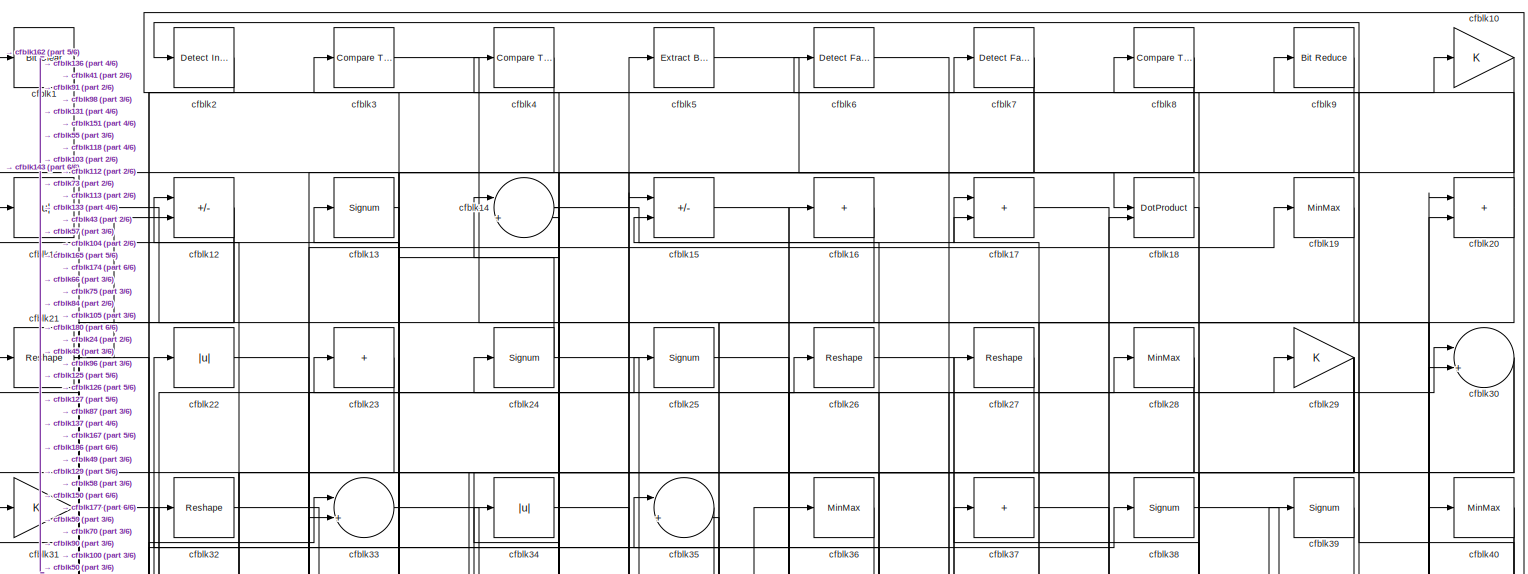
[diagram: root canvas - part 1/6, full width, top band]
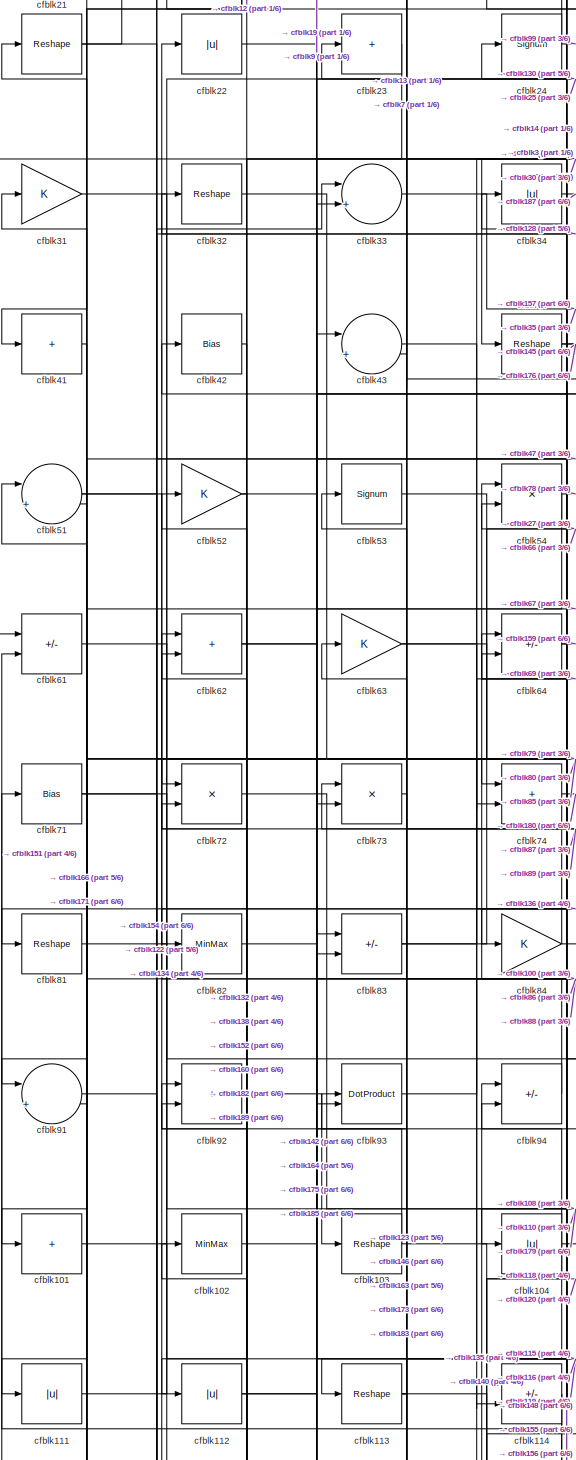
[diagram: root canvas - part 2/6, middle left region]
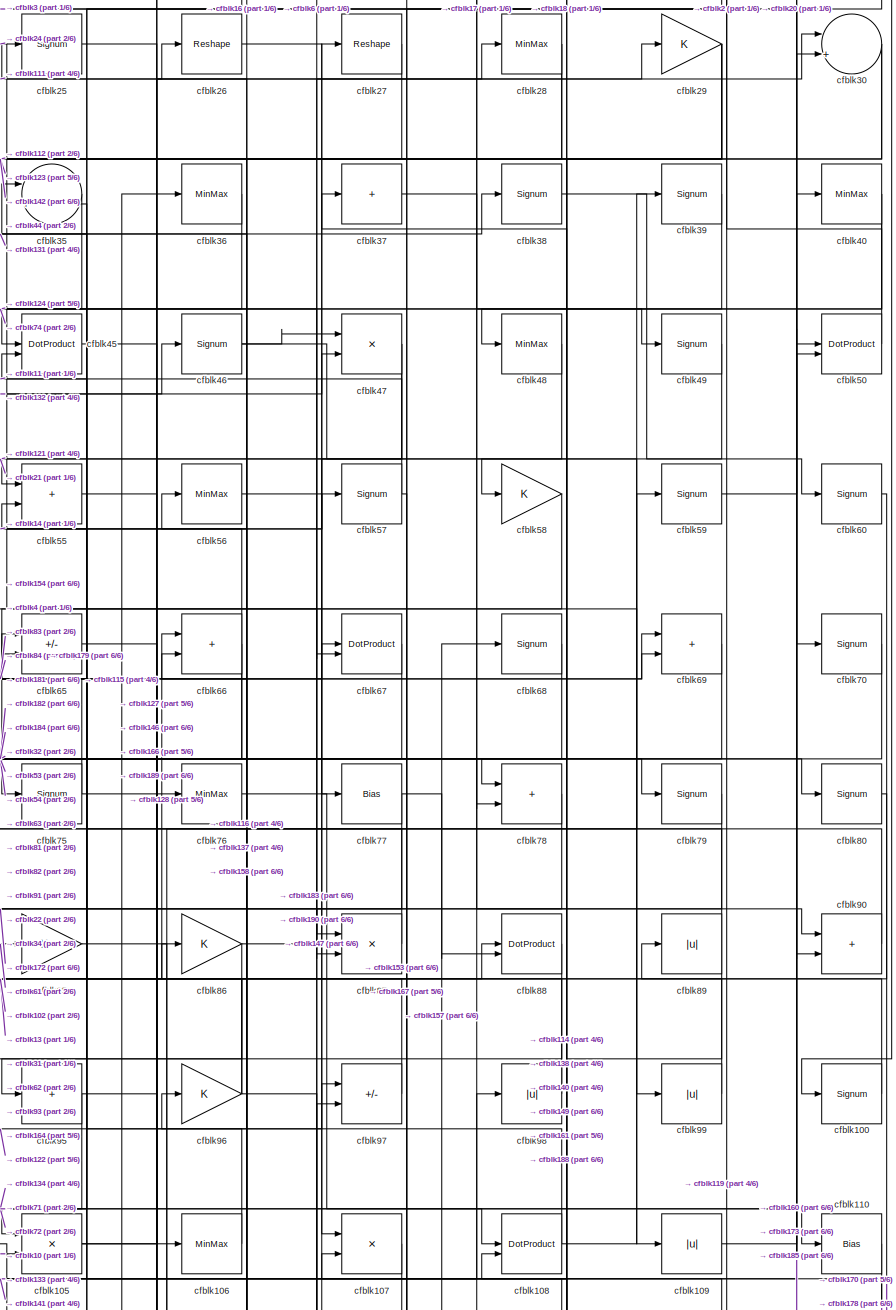
[diagram: root canvas - part 3/6, middle right region]
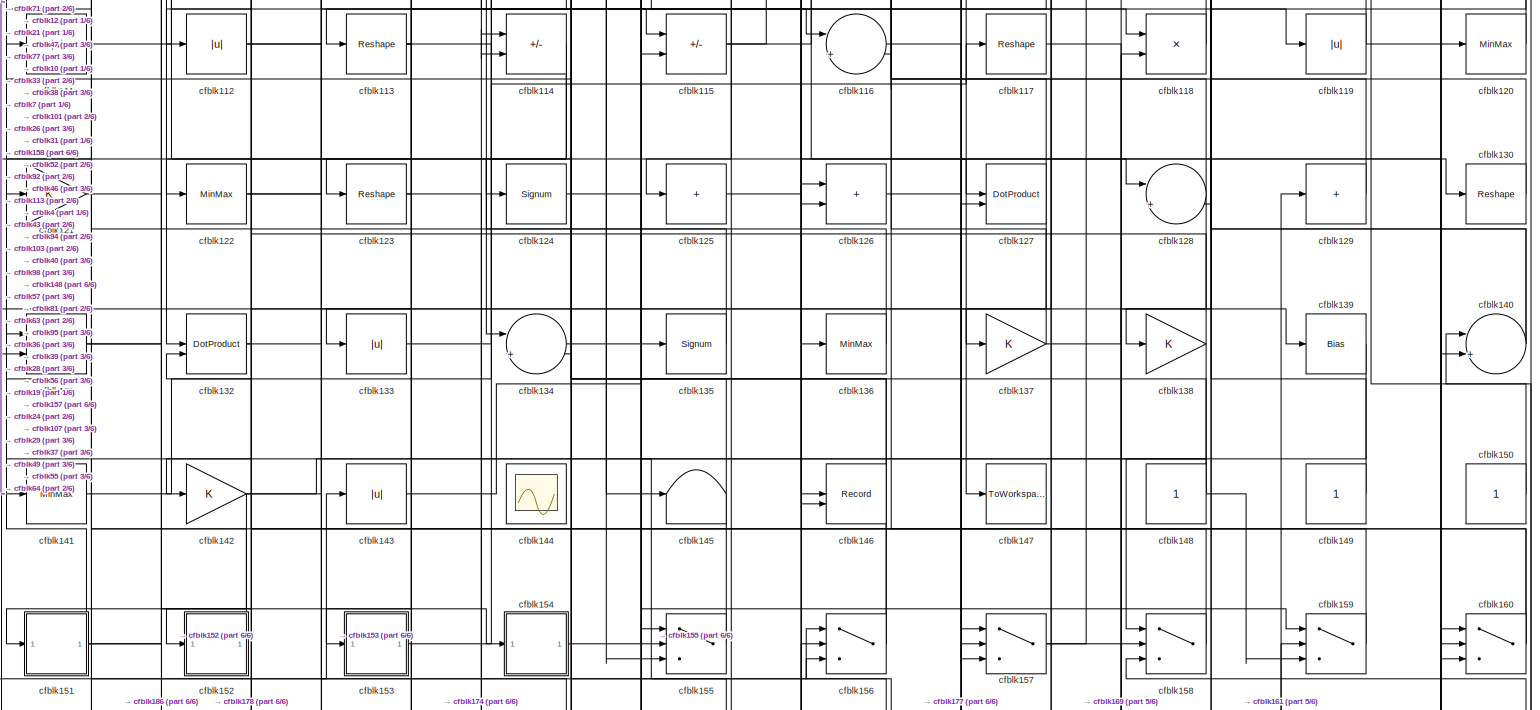
[diagram: root canvas - part 4/6, full width, bottom band]
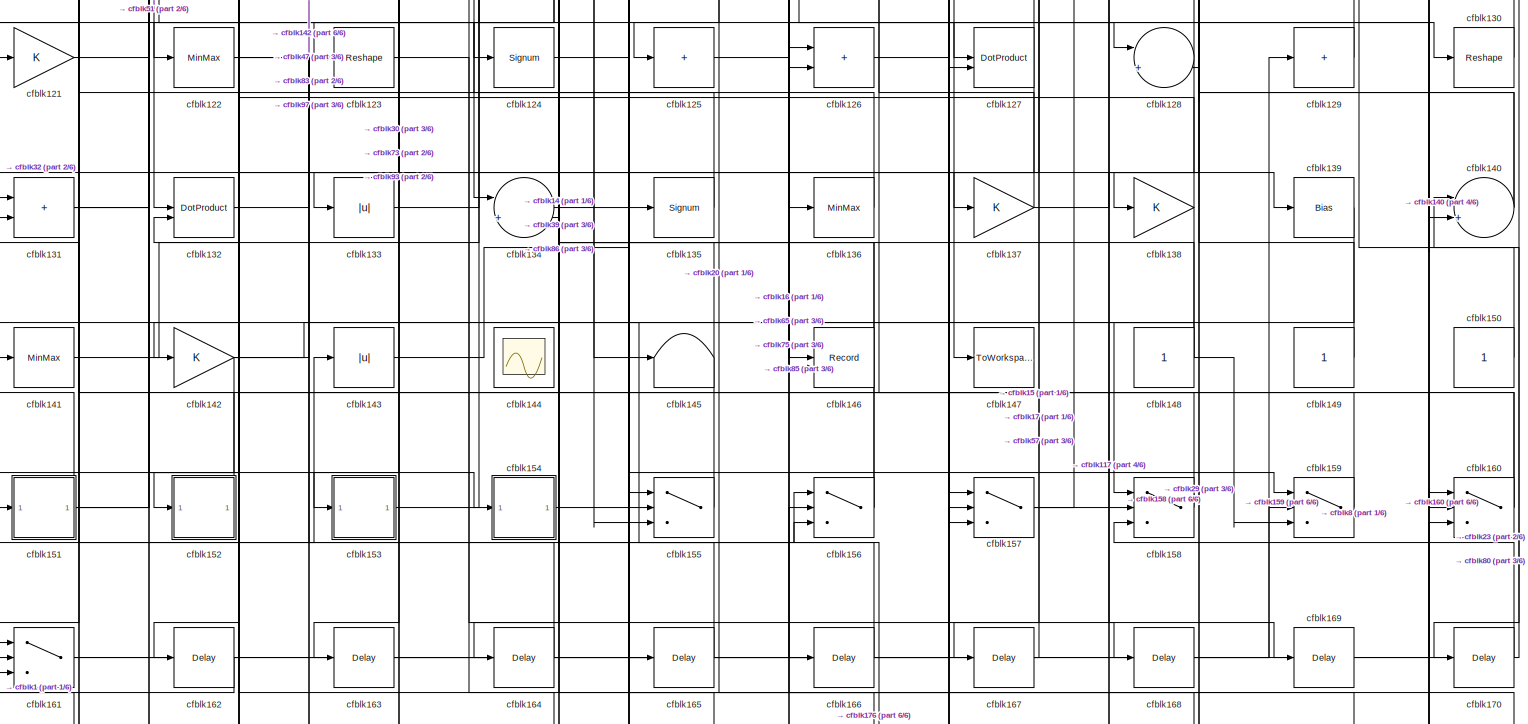
[diagram: root canvas - part 5/6, full width, bottom band]
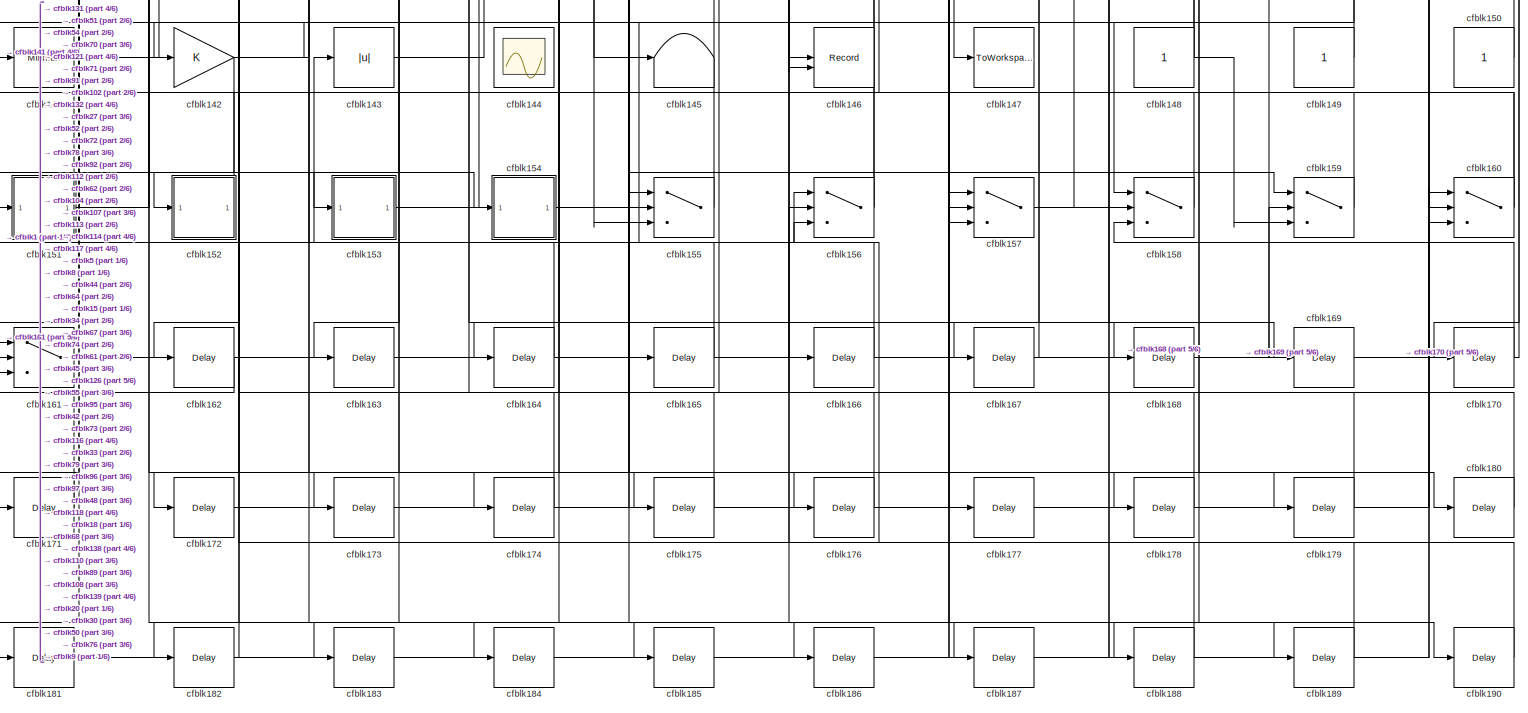
[diagram: root canvas - part 6/6, full width, bottom band]
MODEL slx_f666d6c73bb5
KIND model
CONFIG AbsTol = auto
CONFIG EnableMultiTasking = off
CONFIG FixedStep = auto
CONFIG MaxStep = auto
CONFIG MinStep = auto
CONFIG RelTol = 1e-3
CONFIG SampleTimeConstraint = Unconstrained
CONFIG SolverName = VariableStepAuto
CONFIG StartTime = 0.0
CONFIG StopTime = 10.0
BLOCK [Reference] cfblk1  REF=simulink/Logic and Bit
Operations/Bit Clear
  LibrarySourceBlock = hdlsllib/Logic and Bit\nOperations/Bit Clear
  SourceBlock = simulink/Logic and Bit\nOperations/Bit Clear
  SourceType = Bit Clear
BLOCK [Gain] cfblk10
BLOCK [Signum] cfblk100
BLOCK [Sum] cfblk101
  IconShape = rectangular
  Inputs = +
BLOCK [MinMax] cfblk102
BLOCK [Reshape] cfblk103
BLOCK [Abs] cfblk104
  SaturateOnIntegerOverflow = off
BLOCK [Product] cfblk105
  Inputs = */
  RndMeth = Zero
  SaturateOnIntegerOverflow = on
BLOCK [MinMax] cfblk106
BLOCK [Product] cfblk107
  Inputs = */
  RndMeth = Zero
  SaturateOnIntegerOverflow = on
BLOCK [DotProduct] cfblk108
  OutDataTypeStr = Inherit: Inherit via internal rule
BLOCK [Abs] cfblk109
  SaturateOnIntegerOverflow = off
BLOCK [Abs] cfblk11
  SaturateOnIntegerOverflow = off
BLOCK [Bias] cfblk110
  Bias = 0.0
  SaturateOnIntegerOverflow = off
BLOCK [Abs] cfblk111
  SaturateOnIntegerOverflow = off
BLOCK [Abs] cfblk112
  SaturateOnIntegerOverflow = off
BLOCK [Reshape] cfblk113
BLOCK [Sum] cfblk114
  IconShape = rectangular
  Inputs = +-
BLOCK [Sum] cfblk115
  IconShape = rectangular
  Inputs = +-
BLOCK [Sum] cfblk116
  Inputs = |++
BLOCK [Reshape] cfblk117
BLOCK [Product] cfblk118
  Inputs = */
  RndMeth = Zero
  SaturateOnIntegerOverflow = on
BLOCK [Abs] cfblk119
  SaturateOnIntegerOverflow = off
BLOCK [Sum] cfblk12
  IconShape = rectangular
  Inputs = +-
BLOCK [MinMax] cfblk120
BLOCK [Gain] cfblk121
BLOCK [MinMax] cfblk122
BLOCK [Reshape] cfblk123
BLOCK [Signum] cfblk124
BLOCK [Sum] cfblk125
  IconShape = rectangular
  Inputs = +
BLOCK [Sum] cfblk126
  IconShape = rectangular
BLOCK [DotProduct] cfblk127
  OutDataTypeStr = Inherit: Inherit via internal rule
BLOCK [Sum] cfblk128
  Inputs = |++
BLOCK [Sum] cfblk129
  IconShape = rectangular
  Inputs = +
BLOCK [Signum] cfblk13
BLOCK [Reshape] cfblk130
BLOCK [Sum] cfblk131
  IconShape = rectangular
BLOCK [DotProduct] cfblk132
  OutDataTypeStr = Inherit: Inherit via internal rule
BLOCK [Abs] cfblk133
  SaturateOnIntegerOverflow = off
BLOCK [Sum] cfblk134
  Inputs = |++
BLOCK [Signum] cfblk135
BLOCK [MinMax] cfblk136
BLOCK [Gain] cfblk137
BLOCK [Gain] cfblk138
BLOCK [Bias] cfblk139
  Bias = 0.0
  SaturateOnIntegerOverflow = off
BLOCK [Sum] cfblk14
  Inputs = |++
BLOCK [Sum] cfblk140
  Inputs = |++
BLOCK [MinMax] cfblk141
BLOCK [Gain] cfblk142
BLOCK [Abs] cfblk143
  SaturateOnIntegerOverflow = off
BLOCK [Scope] cfblk144
  Floating = on
  NumInputPorts = 1
  ScopeSpecificationString = Simulink.scopes.TimeScopeBlockCfg('CurrentConfiguration', extmgr.ConfigurationSet(extmgr.Configuration('Core','General UI',true,'FigureColor',[0.156862745098039 0.156862745098039 0.156862745098039]),extmgr.Configuration('Core','Source UI',true),extmgr.Configuration('Sources','WiredSimulink',true,'DataLoggingVariableName','ScopeData1','DataLoggingSaveFormat','StructureWithTime','DataLoggingLimitDat...<+2713ch>
BLOCK [Terminator] cfblk145
BLOCK [Record] cfblk146
  CompatibilityTag = XY
  FileSettingsInternal = {"entries":[{"content":{"excelSettings":{"content":{},"type":"Streamout.ExcelSettings"}},"type":"Streamout.FileSettingStorage","uuid":""}],"packageUris":["http:\/\/schema.mathworks.com\/mf0\/streamout_blocks\/R2020a"],"version":"1.0"}
  Layout = [1 1]
  SignalsInternal = {"entries":[{"content":{"signals":[{"content":{"blockPath":[],"dimensions":[1],"domain":"","lineColor":"#a2142f","plots":[1],"port":1,"signalID":2359,"signalName":"XY Graph:1"},"type":"RecordBlkView.Signal","uuid":""},{"content":{"blockPath":[],"dimensions":[1],"domain":"","lineColor":"#139fff","plots":[1],"port":2,"signalID":2362,"signalName":"XY Graph:2"},"type":"RecordBlkView.Signal","uuid":""}...<+146ch>
  VisualizationBindings = {"xyplotplugin":{"info":[{"series":[{"bindingParametersList":[{"parameter":"X-Axis","signalID":2359,"signalName":"XY Graph:1"},{"parameter":"Y-Axis","signalID":2362,"signalName":"XY Graph:2"}],"seriesID":11529}],"subplotID":1}]}}
  st = -1
BLOCK [ToWorkspace] cfblk147
  MaxDataPoints = inf
  SampleTime = -1
  SaveFormat = Timeseries
  VariableName = simout
BLOCK [Constant] cfblk148
  SampleTime = -1
BLOCK [Constant] cfblk149
  SampleTime = -1
BLOCK [Sum] cfblk15
  IconShape = rectangular
  Inputs = +-
BLOCK [Constant] cfblk150
  SampleTime = -1
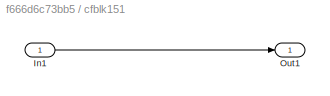
BLOCK [SubSystem] cfblk151
  LibrarySourceBlock = hdlsllib/Ports &\nSubsystems/Subsystem
BLOCK [Inport] cfblk151/In1
BLOCK [Outport] cfblk151/Out1
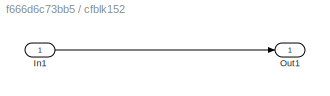
BLOCK [SubSystem] cfblk152
  LibrarySourceBlock = hdlsllib/Ports &\nSubsystems/Subsystem
BLOCK [Inport] cfblk152/In1
BLOCK [Outport] cfblk152/Out1
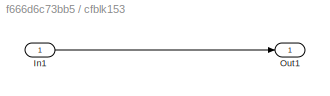
BLOCK [SubSystem] cfblk153
  LibrarySourceBlock = hdlsllib/Ports &\nSubsystems/Subsystem
BLOCK [Inport] cfblk153/In1
BLOCK [Outport] cfblk153/Out1
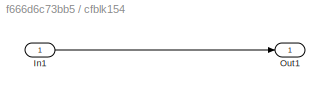
BLOCK [SubSystem] cfblk154
  LibrarySourceBlock = hdlsllib/Ports &\nSubsystems/Subsystem
BLOCK [Inport] cfblk154/In1
BLOCK [Outport] cfblk154/Out1
BLOCK [Switch] cfblk155
  InputSameDT = off
  SaturateOnIntegerOverflow = off
BLOCK [Switch] cfblk156
  InputSameDT = off
  SaturateOnIntegerOverflow = off
BLOCK [Switch] cfblk157
  InputSameDT = off
  SaturateOnIntegerOverflow = off
BLOCK [Switch] cfblk158
  InputSameDT = off
  SaturateOnIntegerOverflow = off
BLOCK [Switch] cfblk159
  InputSameDT = off
  SaturateOnIntegerOverflow = off
BLOCK [Sum] cfblk16
  IconShape = rectangular
  Inputs = +
BLOCK [Switch] cfblk160
  InputSameDT = off
  SaturateOnIntegerOverflow = off
BLOCK [Switch] cfblk161
  InputSameDT = off
  SaturateOnIntegerOverflow = off
BLOCK [Delay] cfblk162
  InputPortMap = u0
  SampleTime = 1
BLOCK [Delay] cfblk163
  InputPortMap = u0
  SampleTime = 1
BLOCK [Delay] cfblk164
  InputPortMap = u0
  SampleTime = 1
BLOCK [Delay] cfblk165
  InputPortMap = u0
  SampleTime = 1
BLOCK [Delay] cfblk166
  InputPortMap = u0
  SampleTime = 1
BLOCK [Delay] cfblk167
  InputPortMap = u0
  SampleTime = 1
BLOCK [Delay] cfblk168
  InputPortMap = u0
  SampleTime = 1
BLOCK [Delay] cfblk169
  InputPortMap = u0
  SampleTime = 1
BLOCK [Sum] cfblk17
  IconShape = rectangular
BLOCK [Delay] cfblk170
  InputPortMap = u0
  SampleTime = 1
BLOCK [Delay] cfblk171
  InputPortMap = u0
  SampleTime = 1
BLOCK [Delay] cfblk172
  InputPortMap = u0
  SampleTime = 1
BLOCK [Delay] cfblk173
  InputPortMap = u0
  SampleTime = 1
BLOCK [Delay] cfblk174
  InputPortMap = u0
  SampleTime = 1
BLOCK [Delay] cfblk175
  InputPortMap = u0
  SampleTime = 1
BLOCK [Delay] cfblk176
  InputPortMap = u0
  SampleTime = 1
BLOCK [Delay] cfblk177
  InputPortMap = u0
  SampleTime = 1
BLOCK [Delay] cfblk178
  InputPortMap = u0
  SampleTime = 1
BLOCK [Delay] cfblk179
  InputPortMap = u0
  SampleTime = 1
BLOCK [DotProduct] cfblk18
  OutDataTypeStr = Inherit: Inherit via internal rule
BLOCK [Delay] cfblk180
  InputPortMap = u0
  SampleTime = 1
BLOCK [Delay] cfblk181
  InputPortMap = u0
  SampleTime = 1
BLOCK [Delay] cfblk182
  InputPortMap = u0
  SampleTime = 1
BLOCK [Delay] cfblk183
  InputPortMap = u0
  SampleTime = 1
BLOCK [Delay] cfblk184
  InputPortMap = u0
  SampleTime = 1
BLOCK [Delay] cfblk185
  InputPortMap = u0
  SampleTime = 1
BLOCK [Delay] cfblk186
  InputPortMap = u0
  SampleTime = 1
BLOCK [Delay] cfblk187
  InputPortMap = u0
  SampleTime = 1
BLOCK [Delay] cfblk188
  InputPortMap = u0
  SampleTime = 1
BLOCK [Delay] cfblk189
  InputPortMap = u0
  SampleTime = 1
BLOCK [MinMax] cfblk19
BLOCK [Delay] cfblk190
  InputPortMap = u0
  SampleTime = 1
BLOCK [Reference] cfblk2  REF=simulink/Logic and Bit
Operations/Detect
Increase
  LibrarySourceBlock = hdlsllib/Logic and Bit\nOperations/Detect\nIncrease
  SourceBlock = simulink/Logic and Bit\nOperations/Detect\nIncrease
  SourceType = Detect Increase
BLOCK [Sum] cfblk20
  IconShape = rectangular
BLOCK [Reshape] cfblk21
BLOCK [Abs] cfblk22
  SaturateOnIntegerOverflow = off
BLOCK [Sum] cfblk23
  IconShape = rectangular
  Inputs = +
BLOCK [Signum] cfblk24
BLOCK [Signum] cfblk25
BLOCK [Reshape] cfblk26
BLOCK [Reshape] cfblk27
BLOCK [MinMax] cfblk28
BLOCK [Gain] cfblk29
BLOCK [Reference] cfblk3  REF=hdlsllib/Logic and Bit
Operations/Compare
To Constant
  SourceBlock = hdlsllib/Logic and Bit\nOperations/Compare\nTo Constant
  SourceType = Compare To Constant
BLOCK [Sum] cfblk30
  Inputs = |++
BLOCK [Gain] cfblk31
BLOCK [Reshape] cfblk32
BLOCK [Sum] cfblk33
  Inputs = |++
BLOCK [Abs] cfblk34
  SaturateOnIntegerOverflow = off
BLOCK [Sum] cfblk35
  Inputs = |++
BLOCK [MinMax] cfblk36
BLOCK [Sum] cfblk37
  IconShape = rectangular
  Inputs = +
BLOCK [Signum] cfblk38
BLOCK [Signum] cfblk39
BLOCK [Reference] cfblk4  REF=hdlsllib/Logic and Bit
Operations/Compare
To Constant
  SourceBlock = hdlsllib/Logic and Bit\nOperations/Compare\nTo Constant
  SourceType = Compare To Constant
BLOCK [MinMax] cfblk40
BLOCK [Sum] cfblk41
  IconShape = rectangular
  Inputs = +
BLOCK [Bias] cfblk42
  Bias = 0.0
  SaturateOnIntegerOverflow = off
BLOCK [Sum] cfblk43
  Inputs = |++
BLOCK [Reshape] cfblk44
BLOCK [DotProduct] cfblk45
  OutDataTypeStr = Inherit: Inherit via internal rule
BLOCK [Signum] cfblk46
BLOCK [Product] cfblk47
  Inputs = */
  RndMeth = Zero
  SaturateOnIntegerOverflow = on
BLOCK [MinMax] cfblk48
BLOCK [Signum] cfblk49
BLOCK [Reference] cfblk5  REF=simulink/Logic and Bit
Operations/Extract Bits
  LibrarySourceBlock = hdlsllib/Logic and Bit\nOperations/Extract Bits
  SourceBlock = simulink/Logic and Bit\nOperations/Extract Bits
  SourceType = Extract Bits
BLOCK [DotProduct] cfblk50
  OutDataTypeStr = Inherit: Inherit via internal rule
BLOCK [Sum] cfblk51
  Inputs = |++
BLOCK [Gain] cfblk52
BLOCK [Signum] cfblk53
BLOCK [Product] cfblk54
  Inputs = */
  RndMeth = Zero
  SaturateOnIntegerOverflow = on
BLOCK [Sum] cfblk55
  IconShape = rectangular
BLOCK [MinMax] cfblk56
BLOCK [Signum] cfblk57
BLOCK [Gain] cfblk58
BLOCK [Signum] cfblk59
BLOCK [Reference] cfblk6  REF=hdlsllib/Logic and Bit
Operations/Detect Fall
Nonpositive
  SourceBlock = hdlsllib/Logic and Bit\nOperations/Detect Fall\nNonpositive
  SourceType = Detect Fall Nonpositive
BLOCK [Signum] cfblk60
BLOCK [Sum] cfblk61
  IconShape = rectangular
  Inputs = +-
BLOCK [Sum] cfblk62
  IconShape = rectangular
BLOCK [Gain] cfblk63
BLOCK [Sum] cfblk64
  IconShape = rectangular
  Inputs = +-
BLOCK [Sum] cfblk65
  IconShape = rectangular
  Inputs = +-
BLOCK [Sum] cfblk66
  IconShape = rectangular
BLOCK [DotProduct] cfblk67
  OutDataTypeStr = Inherit: Inherit via internal rule
BLOCK [Signum] cfblk68
BLOCK [Sum] cfblk69
  IconShape = rectangular
BLOCK [Reference] cfblk7  REF=hdlsllib/Logic and Bit
Operations/Detect Fall
Negative
  SourceBlock = hdlsllib/Logic and Bit\nOperations/Detect Fall\nNegative
  SourceType = Detect Fall Negative
BLOCK [Signum] cfblk70
BLOCK [Bias] cfblk71
  Bias = 0.0
  SaturateOnIntegerOverflow = off
BLOCK [Product] cfblk72
  Inputs = */
  RndMeth = Zero
  SaturateOnIntegerOverflow = on
BLOCK [Product] cfblk73
  Inputs = */
  RndMeth = Zero
  SaturateOnIntegerOverflow = on
BLOCK [Sum] cfblk74
  IconShape = rectangular
BLOCK [Signum] cfblk75
BLOCK [MinMax] cfblk76
BLOCK [Bias] cfblk77
  Bias = 0.0
  SaturateOnIntegerOverflow = off
BLOCK [Sum] cfblk78
  IconShape = rectangular
BLOCK [Signum] cfblk79
BLOCK [Reference] cfblk8  REF=hdlsllib/Logic and Bit
Operations/Compare
To Constant
  SourceBlock = hdlsllib/Logic and Bit\nOperations/Compare\nTo Constant
  SourceType = Compare To Constant
BLOCK [Signum] cfblk80
BLOCK [Reshape] cfblk81
BLOCK [MinMax] cfblk82
BLOCK [Sum] cfblk83
  IconShape = rectangular
  Inputs = +-
BLOCK [Gain] cfblk84
BLOCK [Gain] cfblk85
BLOCK [Gain] cfblk86
BLOCK [Product] cfblk87
  Inputs = */
  RndMeth = Zero
  SaturateOnIntegerOverflow = on
BLOCK [DotProduct] cfblk88
  OutDataTypeStr = Inherit: Inherit via internal rule
BLOCK [Abs] cfblk89
  SaturateOnIntegerOverflow = off
BLOCK [Reference] cfblk9  REF=hdlsllib/Logic and Bit
Operations/Bit Reduce
  SourceBlock = hdlsllib/Logic and Bit\nOperations/Bit Reduce
  SourceType = Bit Reduce
BLOCK [Sum] cfblk90
  IconShape = rectangular
BLOCK [Sum] cfblk91
  Inputs = |++
BLOCK [Sum] cfblk92
  IconShape = rectangular
BLOCK [DotProduct] cfblk93
  OutDataTypeStr = Inherit: Inherit via internal rule
BLOCK [Sum] cfblk94
  IconShape = rectangular
  Inputs = +-
BLOCK [Sum] cfblk95
  IconShape = rectangular
  Inputs = +
BLOCK [Gain] cfblk96
BLOCK [Sum] cfblk97
  IconShape = rectangular
  Inputs = +-
BLOCK [Abs] cfblk98
  SaturateOnIntegerOverflow = off
BLOCK [Abs] cfblk99
  SaturateOnIntegerOverflow = off
LINE cfblk100:1 -> cfblk62:1
LINE cfblk101:1 -> cfblk134:1
LINE cfblk102:1 -> cfblk86:1
NET cfblk103:1 -> cfblk115:1, cfblk12:1
NET cfblk104:1 -> cfblk146:2, cfblk173:1, cfblk94:2
NET cfblk105:1 -> cfblk28:1, cfblk30:1
LINE cfblk106:1 -> cfblk65:2
LINE cfblk107:1 -> cfblk153:1
NET cfblk108:1 -> cfblk59:1, cfblk66:2
LINE cfblk109:1 -> cfblk50:1
LINE cfblk10:1 -> cfblk105:2
LINE cfblk110:1 -> cfblk178:1
LINE cfblk111:1 -> cfblk26:1
NET cfblk112:1 -> cfblk175:1, cfblk19:1
NET cfblk113:1 -> cfblk140:2, cfblk183:1, cfblk53:1
NET cfblk114:1 -> cfblk131:2, cfblk132:1
NET cfblk115:1 -> cfblk36:1, cfblk39:1
LINE cfblk116:1 -> cfblk177:1
LINE cfblk117:1 -> cfblk169:1
LINE cfblk118:1 -> cfblk24:1
NET cfblk119:1 -> cfblk120:1, cfblk55:2
LINE cfblk11:1 -> cfblk90:2
LINE cfblk120:1 -> cfblk64:1
LINE cfblk121:1 -> cfblk186:1
NET cfblk122:1 -> cfblk47:2, cfblk97:1
NET cfblk123:1 -> cfblk168:1, cfblk93:1
LINE cfblk124:1 -> cfblk165:1
LINE cfblk125:1 -> cfblk16:1
LINE cfblk126:1 -> cfblk130:1
NET cfblk127:1 -> cfblk15:2, cfblk162:1
NET cfblk128:1 -> cfblk161:2, cfblk32:1
LINE cfblk129:1 -> cfblk8:1
NET cfblk12:1 -> cfblk151:1, cfblk91:2
LINE cfblk130:1 -> cfblk23:1
NET cfblk131:1 -> cfblk10:1, cfblk38:1
NET cfblk132:1 -> cfblk46:1, cfblk92:1
LINE cfblk133:1 -> cfblk40:1
LINE cfblk134:1 -> cfblk57:1
LINE cfblk135:1 -> cfblk94:1
LINE cfblk136:1 -> cfblk21:1
NET cfblk137:1 -> cfblk139:1, cfblk56:1
NET cfblk138:1 -> cfblk158:1, cfblk52:1
LINE cfblk139:1 -> cfblk155:2
LINE cfblk13:1 -> cfblk43:2
NET cfblk140:1 -> cfblk107:2, cfblk37:1
LINE cfblk141:1 -> cfblk98:1
NET cfblk142:1 -> cfblk156:1, cfblk161:1, cfblk33:2
LINE cfblk143:1 -> cfblk5:1
NET cfblk148:1 -> cfblk141:1, cfblk159:3, cfblk54:2
LINE cfblk149:1 -> cfblk108:2
NET cfblk14:1 -> cfblk17:1, cfblk84:1
LINE cfblk150:1 -> cfblk9:1
LINE cfblk151/In1:1 -> cfblk151/Out1:1
NET cfblk151:1 -> cfblk33:1, cfblk71:1, cfblk7:1
LINE cfblk152/In1:1 -> cfblk152/Out1:1
LINE cfblk152:1 -> cfblk131:1
LINE cfblk153/In1:1 -> cfblk153/Out1:1
LINE cfblk153:1 -> cfblk117:1
LINE cfblk154/In1:1 -> cfblk154/Out1:1
LINE cfblk154:1 -> cfblk67:1
LINE cfblk155:1 -> cfblk61:2
NET cfblk156:1 -> cfblk42:1, cfblk73:1
NET cfblk157:1 -> cfblk118:2, cfblk68:1
LINE cfblk158:1 -> cfblk96:1
LINE cfblk159:1 -> cfblk102:1
LINE cfblk15:1 -> cfblk126:2
NET cfblk160:1 -> cfblk51:2, cfblk62:2
NET cfblk161:1 -> cfblk129:1, cfblk140:1
LINE cfblk162:1 -> cfblk1:1
LINE cfblk163:1 -> cfblk127:2
LINE cfblk164:1 -> cfblk83:1
LINE cfblk165:1 -> cfblk14:1
LINE cfblk166:1 -> cfblk51:1
LINE cfblk167:1 -> cfblk17:2
LINE cfblk168:1 -> cfblk159:2
LINE cfblk169:1 -> cfblk160:1
LINE cfblk16:1 -> cfblk45:1
LINE cfblk170:1 -> cfblk158:3
LINE cfblk171:1 -> cfblk61:1
LINE cfblk172:1 -> cfblk155:1
LINE cfblk173:1 -> cfblk30:2
LINE cfblk174:1 -> cfblk114:1
LINE cfblk175:1 -> cfblk64:2
LINE cfblk176:1 -> cfblk126:1
LINE cfblk177:1 -> cfblk20:2
LINE cfblk178:1 -> cfblk132:2
LINE cfblk179:1 -> cfblk45:2
LINE cfblk17:1 -> cfblk49:1
LINE cfblk180:1 -> cfblk15:1
LINE cfblk181:1 -> cfblk157:2
LINE cfblk182:1 -> cfblk92:2
LINE cfblk183:1 -> cfblk97:2
LINE cfblk184:1 -> cfblk160:3
LINE cfblk185:1 -> cfblk50:2
LINE cfblk186:1 -> cfblk18:2
LINE cfblk187:1 -> cfblk158:2
LINE cfblk188:1 -> cfblk156:2
LINE cfblk189:1 -> cfblk72:2
LINE cfblk18:1 -> cfblk58:1
LINE cfblk190:1 -> cfblk156:3
LINE cfblk19:1 -> cfblk137:1
LINE cfblk1:1 -> cfblk143:1
NET cfblk20:1 -> cfblk125:1, cfblk6:1
NET cfblk21:1 -> cfblk12:2, cfblk55:1
LINE cfblk22:1 -> cfblk67:2
LINE cfblk23:1 -> cfblk83:2
NET cfblk24:1 -> cfblk3:1, cfblk99:1
LINE cfblk25:1 -> cfblk106:1
LINE cfblk26:1 -> cfblk107:1
LINE cfblk27:1 -> cfblk142:1
NET cfblk28:1 -> cfblk116:2, cfblk44:1
NET cfblk29:1 -> cfblk114:2, cfblk128:2, cfblk161:3, cfblk48:1
LINE cfblk2:1 -> cfblk100:1
NET cfblk30:1 -> cfblk112:1, cfblk123:1
LINE cfblk31:1 -> cfblk118:1
LINE cfblk32:1 -> cfblk80:1
LINE cfblk33:1 -> cfblk157:1
LINE cfblk34:1 -> cfblk187:1
LINE cfblk35:1 -> cfblk74:1
LINE cfblk36:1 -> cfblk105:1
LINE cfblk37:1 -> cfblk90:1
LINE cfblk38:1 -> cfblk60:1
LINE cfblk39:1 -> cfblk124:1
LINE cfblk3:1 -> cfblk70:1
NET cfblk40:1 -> cfblk115:2, cfblk78:1
LINE cfblk41:1 -> cfblk101:1
LINE cfblk42:1 -> cfblk72:1
LINE cfblk43:1 -> cfblk119:1
NET cfblk44:1 -> cfblk145:1, cfblk176:1
LINE cfblk45:1 -> cfblk76:1
NET cfblk46:1 -> cfblk109:1, cfblk47:1
NET cfblk47:1 -> cfblk121:1, cfblk93:2
LINE cfblk48:1 -> cfblk147:1
LINE cfblk49:1 -> cfblk138:1
LINE cfblk4:1 -> cfblk133:1
LINE cfblk50:1 -> cfblk2:1
NET cfblk51:1 -> cfblk122:1, cfblk74:2
NET cfblk52:1 -> cfblk116:1, cfblk152:1
LINE cfblk53:1 -> cfblk79:1
NET cfblk54:1 -> cfblk171:1, cfblk78:2
LINE cfblk55:1 -> cfblk189:1
LINE cfblk56:1 -> cfblk77:1
NET cfblk57:1 -> cfblk11:1, cfblk167:1
LINE cfblk58:1 -> cfblk75:1
LINE cfblk59:1 -> cfblk20:1
LINE cfblk5:1 -> cfblk18:1
LINE cfblk60:1 -> cfblk89:1
LINE cfblk61:1 -> cfblk85:1
NET cfblk62:1 -> cfblk185:1, cfblk25:1
NET cfblk63:1 -> cfblk136:1, cfblk87:2
NET cfblk64:1 -> cfblk155:3, cfblk159:1
LINE cfblk65:1 -> cfblk166:1
NET cfblk66:1 -> cfblk14:2, cfblk82:1, cfblk91:1
LINE cfblk67:1 -> cfblk184:1
LINE cfblk68:1 -> cfblk182:1
LINE cfblk69:1 -> cfblk81:1
LINE cfblk6:1 -> cfblk87:1
LINE cfblk70:1 -> cfblk181:1
NET cfblk71:1 -> cfblk110:1, cfblk179:1
LINE cfblk72:1 -> cfblk108:1
LINE cfblk73:1 -> cfblk163:1
LINE cfblk74:1 -> cfblk180:1
NET cfblk75:1 -> cfblk127:1, cfblk4:1
LINE cfblk76:1 -> cfblk160:2
NET cfblk77:1 -> cfblk111:1, cfblk88:2
LINE cfblk78:1 -> cfblk172:1
LINE cfblk79:1 -> cfblk157:3
NET cfblk7:1 -> cfblk113:1, cfblk41:1
LINE cfblk80:1 -> cfblk170:1
LINE cfblk81:1 -> cfblk135:1
LINE cfblk82:1 -> cfblk43:1
NET cfblk83:1 -> cfblk27:1, cfblk69:2
NET cfblk84:1 -> cfblk63:1, cfblk69:1
LINE cfblk85:1 -> cfblk128:1
NET cfblk86:1 -> cfblk164:1, cfblk29:1
LINE cfblk87:1 -> cfblk22:1
LINE cfblk88:1 -> cfblk95:1
NET cfblk89:1 -> cfblk188:1, cfblk34:1
NET cfblk8:1 -> cfblk104:1, cfblk174:1
LINE cfblk90:1 -> cfblk65:1
LINE cfblk91:1 -> cfblk154:1
LINE cfblk92:1 -> cfblk103:1
LINE cfblk93:1 -> cfblk88:1
LINE cfblk94:1 -> cfblk54:1
NET cfblk95:1 -> cfblk134:2, cfblk146:1
NET cfblk96:1 -> cfblk13:1, cfblk190:1, cfblk35:2
LINE cfblk97:1 -> cfblk66:1
LINE cfblk98:1 -> cfblk31:1
LINE cfblk99:1 -> cfblk35:1
LINE cfblk9:1 -> cfblk73:2
note: NET lines group one-source signal fan-out (src -> all destinations, sorted); 1:1 wires keep LINE
